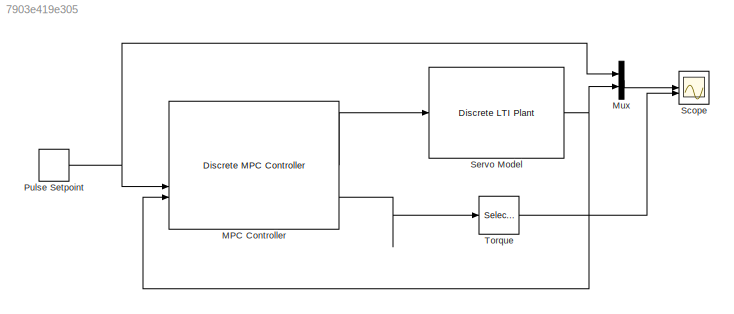
MODEL slx_7903e419e305
KIND model
CONFIG AbsTol = auto
CONFIG EnableMultiTasking = off
CONFIG FixedStep = 0.1
CONFIG MaxStep = auto
CONFIG MinStep = auto
CONFIG RelTol = 1e-3
CONFIG SampleTimeConstraint = Unconstrained
CONFIG SolverName = FixedStepDiscrete
CONFIG StartTime = 0.0
CONFIG StopTime = 50.0
BLOCK [Reference] MPC Controller  REF=jMPClib/MPC Blocks/Discrete MPC Controller
  SourceBlock = jMPClib/MPC Blocks/Discrete MPC Controller
  SourceProductName = JMPC Toolbox
  SourceType = Model Predictive Controller
BLOCK [Mux] Mux
  DisplayOption = bar
  Inputs = 2
BLOCK [DiscretePulseGenerator] Pulse Setpoint
  Period = 400
  PulseWidth = 200
  SampleTime = 0.1
BLOCK [Scope] Scope
  Floating = off
  NumInputPorts = 2
  ScopeSpecificationString = Simulink.scopes.TimeScopeBlockCfg('CurrentConfiguration', extmgr.ConfigurationSet(extmgr.Configuration('Core','General UI',true),extmgr.Configuration('Core','Source UI',true),extmgr.Configuration('Sources','WiredSimulink',true),extmgr.Configuration('Visuals','Time Domain',true,'SerializedDisplays',{struct('MinYLimReal','-0.48175','MaxYLimReal','1.48175','YLabelReal','','MinYLimMag','0.00000','MaxY...<+2024ch>
BLOCK [Reference] Servo Model  REF=jMPClib/MPC Blocks/Discrete LTI Plant
  SourceBlock = jMPClib/MPC Blocks/Discrete LTI Plant
  SourceProductName = JMPC Toolbox
  SourceType = Discrete Linear Model
BLOCK [Selector] Torque
  IndexOptions = Index vector (dialog)
  Indices = 2
  InputPortWidth = 2
  OutputSizes = 1
LINE MPC Controller:1 -> Servo Model:1
LINE MPC Controller:3 -> Torque:1
LINE Mux:1 -> Scope:1
NET Pulse Setpoint:1 -> MPC Controller:2, Mux:1
NET Servo Model:1 -> MPC Controller:3, Mux:2
LINE Torque:1 -> Scope:2
note: NET lines group one-source signal fan-out (src -> all destinations, sorted); 1:1 wires keep LINE
